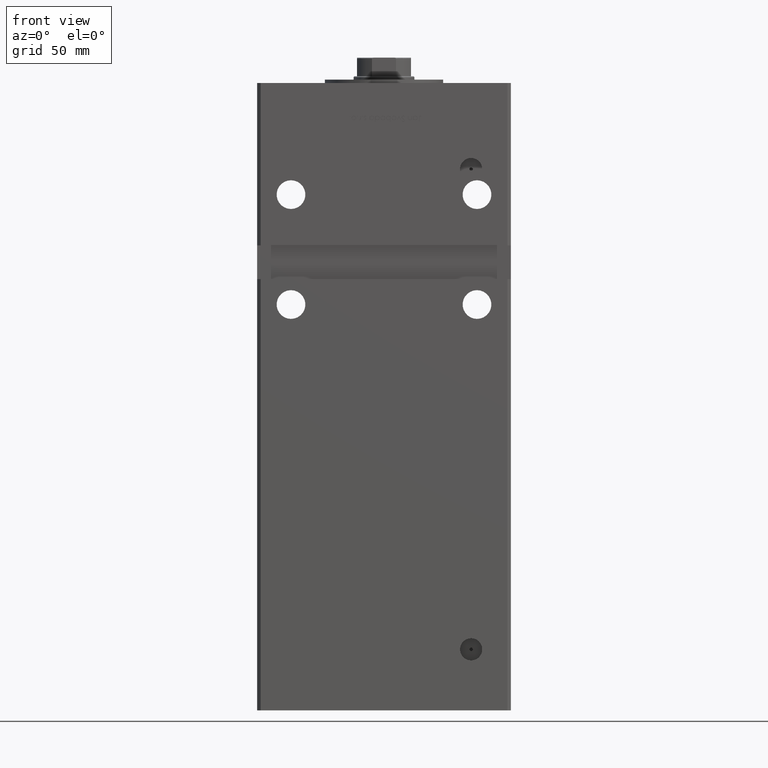
[diagram: clean part render]
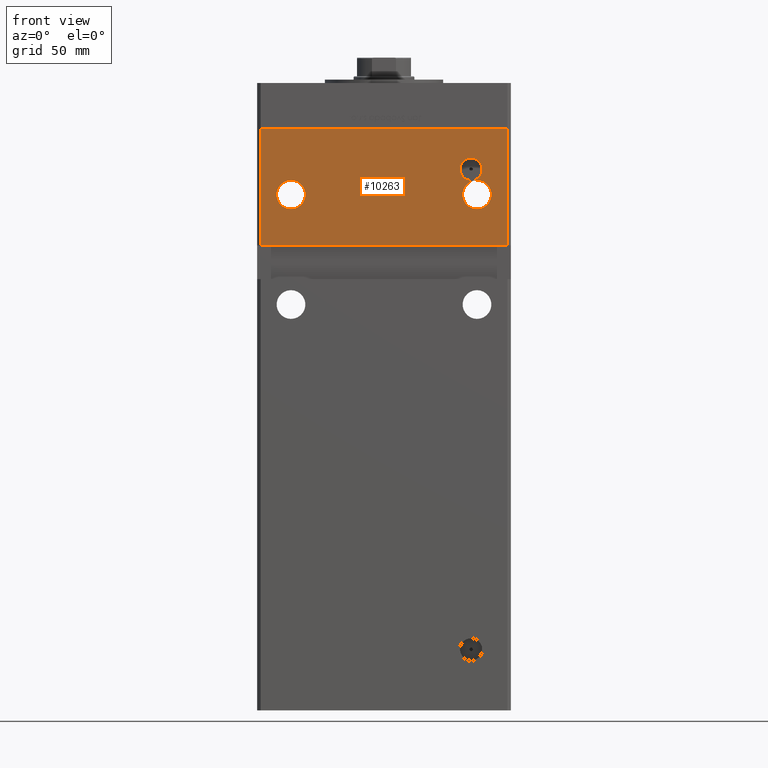
[diagram: same view with one face highlighted and labeled with its STEP entity id]
A machine part, front view. The second image highlights one B-rep face of the part: STEP entity #10263.
In plain terms, the highlighted planar face has unit normal (0, 1, 0).
Its self-contained STEP definition (entity closure, byte-faithful):
#392 = CARTESIAN_POINT ( 'NONE',  ( 51.49999999999995737, -62.50000000000000000, 293.0000000000000000 ) ) ;
#716 = VECTOR ( 'NONE', #15287, 1000.000000000000000 ) ;
#1125 = CARTESIAN_POINT ( 'NONE',  ( -55.00000000000000000, -62.50000000000000000, 269.4999999999999432 ) ) ;
#4011 = CIRCLE ( 'NONE', #29697, 6.579999999999975202 ) ;
#4024 = DIRECTION ( 'NONE',  ( -0.000000000000000000, -0.000000000000000000, -1.000000000000000000 ) ) ;
#4678 = DIRECTION ( 'NONE',  ( -0.000000000000000000, 1.000000000000000000, -0.000000000000000000 ) ) ;
#4826 = FACE_BOUND ( 'NONE', #23308, .T. ) ;
#5339 = DIRECTION ( 'NONE',  ( 0.000000000000000000, -0.000000000000000000, 1.000000000000000000 ) ) ;
#5695 = CIRCLE ( 'NONE', #49396, 8.500000000000007105 ) ;
#6714 = LINE ( 'NONE', #35395, #716 ) ;
#7649 = CARTESIAN_POINT ( 'NONE',  ( -55.00000000000000000, -62.50000000000000000, 277.9999999999999432 ) ) ;
#7931 = CIRCLE ( 'NONE', #51587, 8.500000000000007105 ) ;
#8159 = EDGE_CURVE ( 'NONE', #45420, #33451, #5695, .T. ) ;
#8408 = EDGE_CURVE ( 'NONE', #20588, #25871, #4011, .T. ) ;
#8844 = CARTESIAN_POINT ( 'NONE',  ( -72.99999999999998579, -62.50000000000000000, 317.0000000000000000 ) ) ;
#10263 = ADVANCED_FACE ( 'NONE', ( #4826, #29470, #33752, #42572 ), #50122, .F. ) ;
#10705 = CARTESIAN_POINT ( 'NONE',  ( 51.49999999999995737, -62.50000000000000000, 293.0000000000000000 ) ) ;
#12060 = CIRCLE ( 'NONE', #16345, 8.500000000000007105 ) ;
#14241 = LINE ( 'NONE', #48233, #28397 ) ;
#14985 = DIRECTION ( 'NONE',  ( -0.000000000000000000, 1.000000000000000000, -0.000000000000000000 ) ) ;
#15287 = DIRECTION ( 'NONE',  ( -1.000000000000000000, -0.000000000000000000, -0.000000000000000000 ) ) ;
#15947 = ORIENTED_EDGE ( 'NONE', *, *, #35639, .T. ) ;
#16233 = ORIENTED_EDGE ( 'NONE', *, *, #42389, .T. ) ;
#16338 = LINE ( 'NONE', #28672, #43596 ) ;
#16345 = AXIS2_PLACEMENT_3D ( 'NONE', #30616, #25798, #50227 ) ;
#16421 = AXIS2_PLACEMENT_3D ( 'NONE', #7649, #43849, #36598 ) ;
#16430 = EDGE_LOOP ( 'NONE', ( #25866, #15947 ) ) ;
#16514 = EDGE_CURVE ( 'NONE', #41000, #32820, #6714, .T. ) ;
#16732 = DIRECTION ( 'NONE',  ( 0.000000000000000000, 0.000000000000000000, -1.000000000000000000 ) ) ;
#17777 = LINE ( 'NONE', #34129, #23263 ) ;
#19344 = CARTESIAN_POINT ( 'NONE',  ( 55.00000000000000000, -62.50000000000000000, 277.9999999999999432 ) ) ;
#19667 = DIRECTION ( 'NONE',  ( 0.000000000000000000, 0.000000000000000000, 1.000000000000000000 ) ) ;
#20068 = EDGE_CURVE ( 'NONE', #34975, #41000, #16338, .T. ) ;
#20366 = EDGE_LOOP ( 'NONE', ( #52012, #35042, #25681, #51888 ) ) ;
#20588 = VERTEX_POINT ( 'NONE', #47862 ) ;
#22201 = CARTESIAN_POINT ( 'NONE',  ( -55.00000000000000000, -62.50000000000000000, 286.5000000000000000 ) ) ;
#23263 = VECTOR ( 'NONE', #26068, 1000.000000000000000 ) ;
#23308 = EDGE_LOOP ( 'NONE', ( #33228, #47954 ) ) ;
#23526 = EDGE_CURVE ( 'NONE', #51321, #45766, #12060, .T. ) ;
#23615 = DIRECTION ( 'NONE',  ( 0.000000000000000000, 1.000000000000000000, 0.000000000000000000 ) ) ;
#25364 = CARTESIAN_POINT ( 'NONE',  ( 51.49999999999995737, -62.50000000000000000, 299.5799999999999841 ) ) ;
#25681 = ORIENTED_EDGE ( 'NONE', *, *, #20068, .F. ) ;
#25798 = DIRECTION ( 'NONE',  ( 0.000000000000000000, 1.000000000000000000, 0.000000000000000000 ) ) ;
#25866 = ORIENTED_EDGE ( 'NONE', *, *, #8408, .T. ) ;
#25871 = VERTEX_POINT ( 'NONE', #25364 ) ;
#26068 = DIRECTION ( 'NONE',  ( 1.000000000000000000, 0.000000000000000000, 0.000000000000000000 ) ) ;
#26571 = EDGE_CURVE ( 'NONE', #51087, #32820, #14241, .T. ) ;
#26830 = DIRECTION ( 'NONE',  ( -0.000000000000000000, -0.000000000000000000, -1.000000000000000000 ) ) ;
#27364 = DIRECTION ( 'NONE',  ( 0.000000000000000000, 0.000000000000000000, 1.000000000000000000 ) ) ;
#27709 = CARTESIAN_POINT ( 'NONE',  ( 55.00000000000000000, -62.50000000000000000, 286.5000000000000000 ) ) ;
#28397 = VECTOR ( 'NONE', #26830, 1000.000000000000000 ) ;
#28672 = CARTESIAN_POINT ( 'NONE',  ( 72.99999999999998579, -62.50000000000000000, 317.0000000000000000 ) ) ;
#28934 = CARTESIAN_POINT ( 'NONE',  ( 72.99999999999998579, -62.50000000000000000, 248.0000000000000000 ) ) ;
#29470 = FACE_BOUND ( 'NONE', #44283, .T. ) ;
#29697 = AXIS2_PLACEMENT_3D ( 'NONE', #10705, #14985, #30791 ) ;
#30616 = CARTESIAN_POINT ( 'NONE',  ( -55.00000000000000000, -62.50000000000000000, 277.9999999999999432 ) ) ;
#30791 = DIRECTION ( 'NONE',  ( 0.000000000000000000, 0.000000000000000000, -1.000000000000000000 ) ) ;
#31224 = CARTESIAN_POINT ( 'NONE',  ( 55.00000000000000000, -62.50000000000000000, 269.4999999999999432 ) ) ;
#32383 = CARTESIAN_POINT ( 'NONE',  ( -72.99999999999998579, -62.50000000000000000, 248.0000000000000000 ) ) ;
#32489 = AXIS2_PLACEMENT_3D ( 'NONE', #392, #4678, #16732 ) ;
#32820 = VERTEX_POINT ( 'NONE', #32383 ) ;
#33228 = ORIENTED_EDGE ( 'NONE', *, *, #33414, .T. ) ;
#33414 = EDGE_CURVE ( 'NONE', #33451, #45420, #7931, .T. ) ;
#33451 = VERTEX_POINT ( 'NONE', #27709 ) ;
#33752 = FACE_OUTER_BOUND ( 'NONE', #20366, .T. ) ;
#34129 = CARTESIAN_POINT ( 'NONE',  ( -72.99999999999998579, -62.50000000000000000, 317.0000000000000000 ) ) ;
#34975 = VERTEX_POINT ( 'NONE', #41787 ) ;
#35042 = ORIENTED_EDGE ( 'NONE', *, *, #16514, .F. ) ;
#35395 = CARTESIAN_POINT ( 'NONE',  ( -74.99999999999998579, -62.50000000000000000, 248.0000000000000000 ) ) ;
#35639 = EDGE_CURVE ( 'NONE', #25871, #20588, #45324, .T. ) ;
#36286 = DIRECTION ( 'NONE',  ( 0.000000000000000000, 1.000000000000000000, 0.000000000000000000 ) ) ;
#36598 = DIRECTION ( 'NONE',  ( 0.000000000000000000, 0.000000000000000000, 1.000000000000000000 ) ) ;
#36647 = AXIS2_PLACEMENT_3D ( 'NONE', #8844, #46343, #5339 ) ;
#36814 = ORIENTED_EDGE ( 'NONE', *, *, #23526, .T. ) ;
#36815 = CARTESIAN_POINT ( 'NONE',  ( 55.00000000000000000, -62.50000000000000000, 277.9999999999999432 ) ) ;
#41000 = VERTEX_POINT ( 'NONE', #28934 ) ;
#41405 = EDGE_CURVE ( 'NONE', #51087, #34975, #17777, .T. ) ;
#41787 = CARTESIAN_POINT ( 'NONE',  ( 72.99999999999998579, -62.50000000000000000, 317.0000000000000000 ) ) ;
#42144 = CARTESIAN_POINT ( 'NONE',  ( -72.99999999999998579, -62.50000000000000000, 317.0000000000000000 ) ) ;
#42389 = EDGE_CURVE ( 'NONE', #45766, #51321, #48962, .T. ) ;
#42572 = FACE_BOUND ( 'NONE', #16430, .T. ) ;
#43596 = VECTOR ( 'NONE', #4024, 1000.000000000000000 ) ;
#43849 = DIRECTION ( 'NONE',  ( 0.000000000000000000, 1.000000000000000000, 0.000000000000000000 ) ) ;
#44283 = EDGE_LOOP ( 'NONE', ( #36814, #16233 ) ) ;
#45324 = CIRCLE ( 'NONE', #32489, 6.579999999999975202 ) ;
#45420 = VERTEX_POINT ( 'NONE', #31224 ) ;
#45766 = VERTEX_POINT ( 'NONE', #1125 ) ;
#46343 = DIRECTION ( 'NONE',  ( 0.000000000000000000, 1.000000000000000000, 0.000000000000000000 ) ) ;
#47862 = CARTESIAN_POINT ( 'NONE',  ( 51.49999999999995737, -62.50000000000000000, 286.4200000000000159 ) ) ;
#47954 = ORIENTED_EDGE ( 'NONE', *, *, #8159, .T. ) ;
#48233 = CARTESIAN_POINT ( 'NONE',  ( -72.99999999999998579, -62.50000000000000000, 317.0000000000000000 ) ) ;
#48962 = CIRCLE ( 'NONE', #16421, 8.500000000000007105 ) ;
#49396 = AXIS2_PLACEMENT_3D ( 'NONE', #19344, #23615, #27364 ) ;
#50122 = PLANE ( 'NONE',  #36647 ) ;
#50227 = DIRECTION ( 'NONE',  ( 0.000000000000000000, 0.000000000000000000, 1.000000000000000000 ) ) ;
#51087 = VERTEX_POINT ( 'NONE', #42144 ) ;
#51321 = VERTEX_POINT ( 'NONE', #22201 ) ;
#51587 = AXIS2_PLACEMENT_3D ( 'NONE', #36815, #36286, #19667 ) ;
#51888 = ORIENTED_EDGE ( 'NONE', *, *, #41405, .F. ) ;
#52012 = ORIENTED_EDGE ( 'NONE', *, *, #26571, .T. ) ;